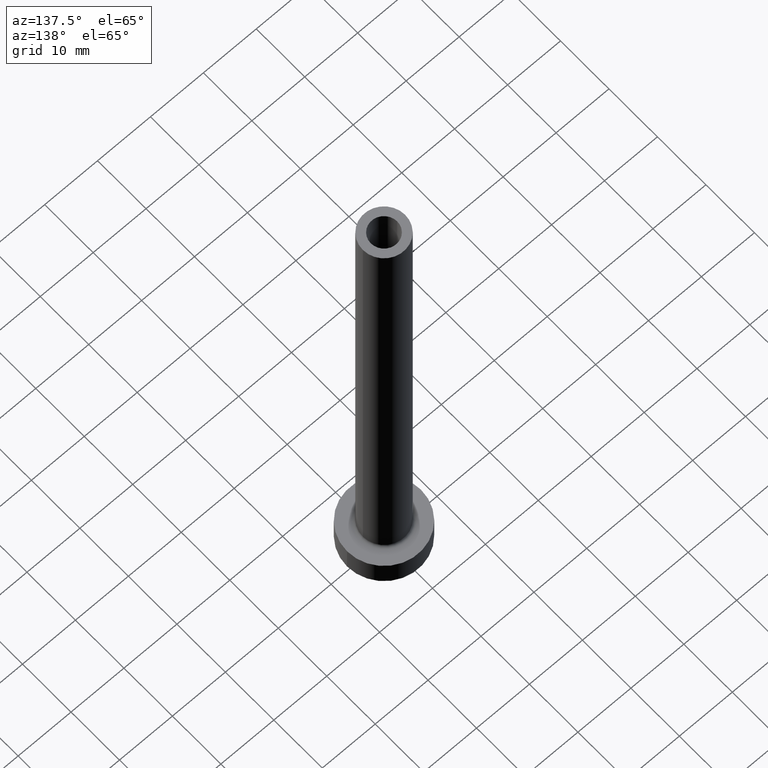
[diagram: clean part render]
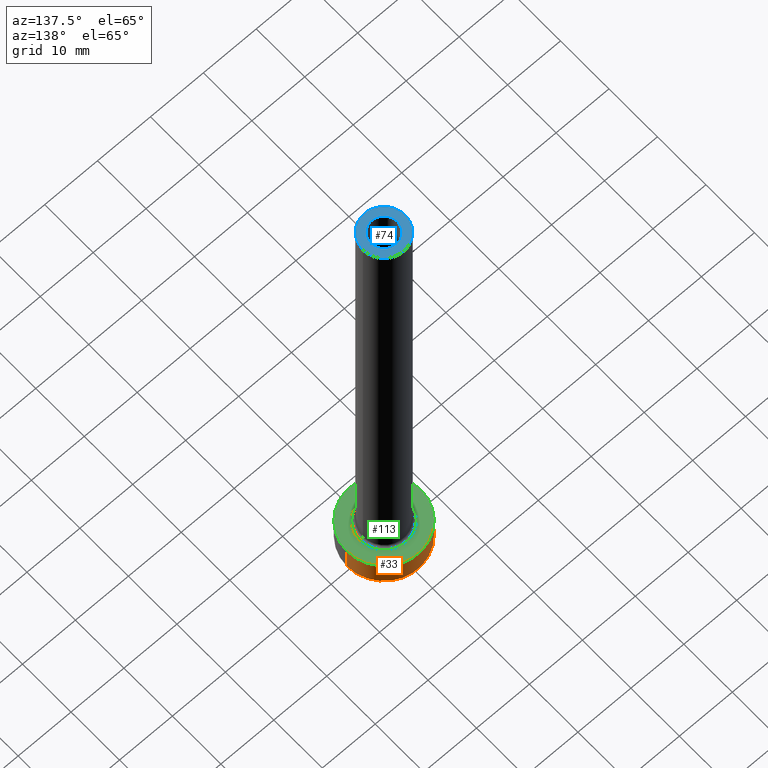
[diagram: same view with three faces highlighted in distinct colors, each labeled with its STEP entity id]
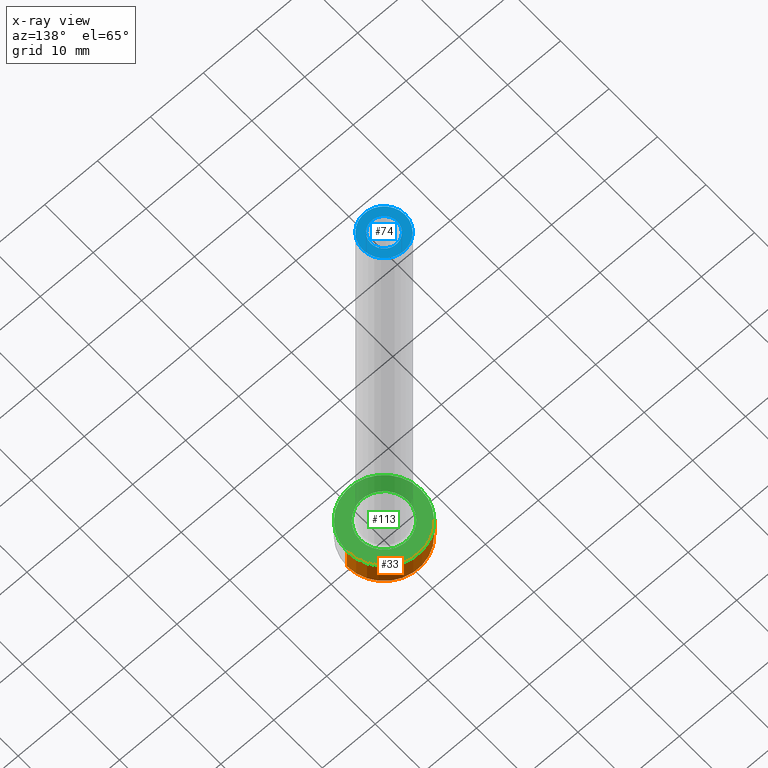
[diagram: x-ray of the same camera — body ghosted, the three highlighted faces saturated]
A machine part, auxiliary view with three faces highlighted in distinct colors.
The next image is the same camera in x-ray (body ghosted, the three faces saturated) — at least one of them is partly hidden behind the body in this view.
Their STEP definitions:

[orange] entity #33 — the highlighted cylindrical surface (partial cylindrical patch) has radius 7 mm, axis along (-0, -0, -1).
#3 = EDGE_CURVE ( 'NONE', #165, #420, #121, .T. ) ;
#12 = DIRECTION ( 'NONE',  ( 1.000000000000000000, 0.000000000000000000, 0.000000000000000000 ) ) ;
#22 = EDGE_CURVE ( 'NONE', #70, #372, #404, .T. ) ;
#30 = VECTOR ( 'NONE', #63, 1000.000000000000000 ) ;
#33 = ADVANCED_FACE ( 'NONE', ( #103 ), #214, .T. ) ;
#51 = EDGE_CURVE ( 'NONE', #165, #70, #215, .T. ) ;
#54 = DIRECTION ( 'NONE',  ( 1.000000000000000000, 0.000000000000000000, 0.000000000000000000 ) ) ;
#57 = CARTESIAN_POINT ( 'NONE',  ( 0.000000000000000000, 0.000000000000000000, 0.000000000000000000 ) ) ;
#63 = DIRECTION ( 'NONE',  ( -0.000000000000000000, -0.000000000000000000, -1.000000000000000000 ) ) ;
#70 = VERTEX_POINT ( 'NONE', #258 ) ;
#85 = DIRECTION ( 'NONE',  ( -0.000000000000000000, -0.000000000000000000, -1.000000000000000000 ) ) ;
#95 = DIRECTION ( 'NONE',  ( 0.000000000000000000, 0.000000000000000000, 1.000000000000000000 ) ) ;
#100 = DIRECTION ( 'NONE',  ( 0.000000000000000000, 0.000000000000000000, 1.000000000000000000 ) ) ;
#103 = FACE_OUTER_BOUND ( 'NONE', #216, .T. ) ;
#114 = AXIS2_PLACEMENT_3D ( 'NONE', #141, #287, #386 ) ;
#121 = CIRCLE ( 'NONE', #133, 7.000000000000000000 ) ;
#128 = LINE ( 'NONE', #361, #363 ) ;
#133 = AXIS2_PLACEMENT_3D ( 'NONE', #447, #95, #54 ) ;
#141 = CARTESIAN_POINT ( 'NONE',  ( 0.000000000000000000, 0.000000000000000000, 5.000000000000000000 ) ) ;
#160 = EDGE_CURVE ( 'NONE', #420, #372, #128, .T. ) ;
#162 = CARTESIAN_POINT ( 'NONE',  ( -7.000000000000000000, 0.000000000000000000, 0.000000000000000000 ) ) ;
#165 = VERTEX_POINT ( 'NONE', #190 ) ;
#190 = CARTESIAN_POINT ( 'NONE',  ( 7.000000000000000000, 8.572527594031473190E-16, 5.000000000000000000 ) ) ;
#214 = CYLINDRICAL_SURFACE ( 'NONE', #114, 7.000000000000000000 ) ;
#215 = LINE ( 'NONE', #378, #30 ) ;
#216 = EDGE_LOOP ( 'NONE', ( #439, #348, #306, #279 ) ) ;
#258 = CARTESIAN_POINT ( 'NONE',  ( 7.000000000000000000, 8.572527594031473190E-16, 0.000000000000000000 ) ) ;
#279 = ORIENTED_EDGE ( 'NONE', *, *, #160, .F. ) ;
#287 = DIRECTION ( 'NONE',  ( -0.000000000000000000, -0.000000000000000000, -1.000000000000000000 ) ) ;
#292 = CARTESIAN_POINT ( 'NONE',  ( -7.000000000000000000, 0.000000000000000000, 5.000000000000000000 ) ) ;
#306 = ORIENTED_EDGE ( 'NONE', *, *, #22, .T. ) ;
#348 = ORIENTED_EDGE ( 'NONE', *, *, #51, .T. ) ;
#361 = CARTESIAN_POINT ( 'NONE',  ( -7.000000000000000000, 0.000000000000000000, 5.000000000000000000 ) ) ;
#363 = VECTOR ( 'NONE', #85, 1000.000000000000000 ) ;
#372 = VERTEX_POINT ( 'NONE', #162 ) ;
#378 = CARTESIAN_POINT ( 'NONE',  ( 7.000000000000000000, 8.572527594031473190E-16, 5.000000000000000000 ) ) ;
#386 = DIRECTION ( 'NONE',  ( -1.000000000000000000, 0.000000000000000000, 0.000000000000000000 ) ) ;
#404 = CIRCLE ( 'NONE', #456, 7.000000000000000000 ) ;
#420 = VERTEX_POINT ( 'NONE', #292 ) ;
#439 = ORIENTED_EDGE ( 'NONE', *, *, #3, .F. ) ;
#447 = CARTESIAN_POINT ( 'NONE',  ( 0.000000000000000000, 0.000000000000000000, 5.000000000000000000 ) ) ;
#456 = AXIS2_PLACEMENT_3D ( 'NONE', #57, #100, #12 ) ;

[blue] entity #74 — the highlighted planar face has unit normal (0, 0, 1).
#2 = AXIS2_PLACEMENT_3D ( 'NONE', #19, #208, #343 ) ;
#6 = ORIENTED_EDGE ( 'NONE', *, *, #106, .T. ) ;
#10 = VERTEX_POINT ( 'NONE', #406 ) ;
#16 = AXIS2_PLACEMENT_3D ( 'NONE', #419, #109, #72 ) ;
#19 = CARTESIAN_POINT ( 'NONE',  ( 0.000000000000000000, 0.000000000000000000, 100.0000000000000000 ) ) ;
#26 = CARTESIAN_POINT ( 'NONE',  ( 0.000000000000000000, 0.000000000000000000, 100.0000000000000000 ) ) ;
#36 = DIRECTION ( 'NONE',  ( 1.000000000000000000, 0.000000000000000000, 0.000000000000000000 ) ) ;
#41 = EDGE_CURVE ( 'NONE', #228, #180, #123, .T. ) ;
#66 = FACE_BOUND ( 'NONE', #350, .T. ) ;
#72 = DIRECTION ( 'NONE',  ( 1.000000000000000000, 0.000000000000000000, 0.000000000000000000 ) ) ;
#74 = ADVANCED_FACE ( 'NONE', ( #66, #413 ), #148, .T. ) ;
#91 = CIRCLE ( 'NONE', #2, 2.500000000000000000 ) ;
#101 = DIRECTION ( 'NONE',  ( 1.000000000000000000, 0.000000000000000000, -0.000000000000000000 ) ) ;
#106 = EDGE_CURVE ( 'NONE', #180, #228, #261, .T. ) ;
#109 = DIRECTION ( 'NONE',  ( 0.000000000000000000, 0.000000000000000000, 1.000000000000000000 ) ) ;
#115 = EDGE_CURVE ( 'NONE', #390, #10, #218, .T. ) ;
#123 = CIRCLE ( 'NONE', #16, 4.000000000000000000 ) ;
#139 = AXIS2_PLACEMENT_3D ( 'NONE', #158, #357, #36 ) ;
#144 = DIRECTION ( 'NONE',  ( 0.000000000000000000, 0.000000000000000000, 1.000000000000000000 ) ) ;
#148 = PLANE ( 'NONE',  #183 ) ;
#154 = ORIENTED_EDGE ( 'NONE', *, *, #41, .T. ) ;
#156 = DIRECTION ( 'NONE',  ( 0.000000000000000000, 0.000000000000000000, 1.000000000000000000 ) ) ;
#158 = CARTESIAN_POINT ( 'NONE',  ( 0.000000000000000000, 0.000000000000000000, 100.0000000000000000 ) ) ;
#180 = VERTEX_POINT ( 'NONE', #329 ) ;
#182 = ORIENTED_EDGE ( 'NONE', *, *, #264, .F. ) ;
#183 = AXIS2_PLACEMENT_3D ( 'NONE', #26, #144, #101 ) ;
#208 = DIRECTION ( 'NONE',  ( 0.000000000000000000, 0.000000000000000000, 1.000000000000000000 ) ) ;
#218 = CIRCLE ( 'NONE', #139, 2.500000000000000000 ) ;
#223 = DIRECTION ( 'NONE',  ( 1.000000000000000000, 0.000000000000000000, 0.000000000000000000 ) ) ;
#228 = VERTEX_POINT ( 'NONE', #441 ) ;
#229 = CARTESIAN_POINT ( 'NONE',  ( 0.000000000000000000, 0.000000000000000000, 100.0000000000000000 ) ) ;
#261 = CIRCLE ( 'NONE', #266, 4.000000000000000000 ) ;
#264 = EDGE_CURVE ( 'NONE', #10, #390, #91, .T. ) ;
#266 = AXIS2_PLACEMENT_3D ( 'NONE', #229, #156, #223 ) ;
#270 = CARTESIAN_POINT ( 'NONE',  ( -2.500000000000000000, 0.000000000000000000, 100.0000000000000000 ) ) ;
#329 = CARTESIAN_POINT ( 'NONE',  ( -4.000000000000000000, 0.000000000000000000, 100.0000000000000000 ) ) ;
#343 = DIRECTION ( 'NONE',  ( 1.000000000000000000, 0.000000000000000000, 0.000000000000000000 ) ) ;
#350 = EDGE_LOOP ( 'NONE', ( #382, #182 ) ) ;
#351 = EDGE_LOOP ( 'NONE', ( #6, #154 ) ) ;
#357 = DIRECTION ( 'NONE',  ( 0.000000000000000000, 0.000000000000000000, 1.000000000000000000 ) ) ;
#382 = ORIENTED_EDGE ( 'NONE', *, *, #115, .F. ) ;
#390 = VERTEX_POINT ( 'NONE', #270 ) ;
#406 = CARTESIAN_POINT ( 'NONE',  ( 2.500000000000000000, 3.061616997868382648E-16, 100.0000000000000000 ) ) ;
#413 = FACE_OUTER_BOUND ( 'NONE', #351, .T. ) ;
#419 = CARTESIAN_POINT ( 'NONE',  ( 0.000000000000000000, 0.000000000000000000, 100.0000000000000000 ) ) ;
#441 = CARTESIAN_POINT ( 'NONE',  ( 4.000000000000000000, 4.898587196589412829E-16, 100.0000000000000000 ) ) ;

[green] entity #113 — the highlighted planar face has unit normal (0, 0, 1).
#1 = DIRECTION ( 'NONE',  ( 1.000000000000000000, 0.000000000000000000, 0.000000000000000000 ) ) ;
#3 = EDGE_CURVE ( 'NONE', #165, #420, #121, .T. ) ;
#15 = DIRECTION ( 'NONE',  ( 1.000000000000000000, 0.000000000000000000, 0.000000000000000000 ) ) ;
#17 = EDGE_CURVE ( 'NONE', #96, #338, #64, .T. ) ;
#21 = DIRECTION ( 'NONE',  ( 0.000000000000000000, 0.000000000000000000, 1.000000000000000000 ) ) ;
#45 = AXIS2_PLACEMENT_3D ( 'NONE', #355, #428, #325 ) ;
#53 = AXIS2_PLACEMENT_3D ( 'NONE', #226, #120, #1 ) ;
#54 = DIRECTION ( 'NONE',  ( 1.000000000000000000, 0.000000000000000000, 0.000000000000000000 ) ) ;
#64 = CIRCLE ( 'NONE', #412, 4.500000000000000888 ) ;
#83 = FACE_OUTER_BOUND ( 'NONE', #321, .T. ) ;
#92 = DIRECTION ( 'NONE',  ( 1.000000000000000000, 0.000000000000000000, 0.000000000000000000 ) ) ;
#95 = DIRECTION ( 'NONE',  ( 0.000000000000000000, 0.000000000000000000, 1.000000000000000000 ) ) ;
#96 = VERTEX_POINT ( 'NONE', #418 ) ;
#102 = ORIENTED_EDGE ( 'NONE', *, *, #393, .T. ) ;
#113 = ADVANCED_FACE ( 'NONE', ( #295, #83 ), #262, .T. ) ;
#120 = DIRECTION ( 'NONE',  ( -0.000000000000000000, -0.000000000000000000, -1.000000000000000000 ) ) ;
#121 = CIRCLE ( 'NONE', #133, 7.000000000000000000 ) ;
#133 = AXIS2_PLACEMENT_3D ( 'NONE', #447, #95, #54 ) ;
#146 = ORIENTED_EDGE ( 'NONE', *, *, #303, .T. ) ;
#151 = ORIENTED_EDGE ( 'NONE', *, *, #17, .T. ) ;
#165 = VERTEX_POINT ( 'NONE', #190 ) ;
#171 = CARTESIAN_POINT ( 'NONE',  ( -4.500000000000000888, 5.510910596163088569E-16, 5.000000000000002665 ) ) ;
#173 = EDGE_LOOP ( 'NONE', ( #151, #102 ) ) ;
#190 = CARTESIAN_POINT ( 'NONE',  ( 7.000000000000000000, 8.572527594031473190E-16, 5.000000000000000000 ) ) ;
#225 = CIRCLE ( 'NONE', #53, 4.500000000000000888 ) ;
#226 = CARTESIAN_POINT ( 'NONE',  ( 0.000000000000000000, 0.000000000000000000, 5.000000000000000000 ) ) ;
#240 = CARTESIAN_POINT ( 'NONE',  ( 0.000000000000000000, 0.000000000000000000, 5.000000000000000000 ) ) ;
#247 = DIRECTION ( 'NONE',  ( -0.000000000000000000, -0.000000000000000000, -1.000000000000000000 ) ) ;
#262 = PLANE ( 'NONE',  #45 ) ;
#286 = CIRCLE ( 'NONE', #304, 7.000000000000000000 ) ;
#292 = CARTESIAN_POINT ( 'NONE',  ( -7.000000000000000000, 0.000000000000000000, 5.000000000000000000 ) ) ;
#294 = ORIENTED_EDGE ( 'NONE', *, *, #3, .T. ) ;
#295 = FACE_BOUND ( 'NONE', #173, .T. ) ;
#303 = EDGE_CURVE ( 'NONE', #420, #165, #286, .T. ) ;
#304 = AXIS2_PLACEMENT_3D ( 'NONE', #334, #21, #15 ) ;
#321 = EDGE_LOOP ( 'NONE', ( #146, #294 ) ) ;
#325 = DIRECTION ( 'NONE',  ( 1.000000000000000000, 0.000000000000000000, -0.000000000000000000 ) ) ;
#334 = CARTESIAN_POINT ( 'NONE',  ( 0.000000000000000000, 0.000000000000000000, 5.000000000000000000 ) ) ;
#338 = VERTEX_POINT ( 'NONE', #171 ) ;
#355 = CARTESIAN_POINT ( 'NONE',  ( 0.000000000000000000, 0.000000000000000000, 5.000000000000000000 ) ) ;
#393 = EDGE_CURVE ( 'NONE', #338, #96, #225, .T. ) ;
#412 = AXIS2_PLACEMENT_3D ( 'NONE', #240, #247, #92 ) ;
#418 = CARTESIAN_POINT ( 'NONE',  ( 4.500000000000000888, 0.000000000000000000, 5.000000000000002665 ) ) ;
#420 = VERTEX_POINT ( 'NONE', #292 ) ;
#428 = DIRECTION ( 'NONE',  ( 0.000000000000000000, 0.000000000000000000, 1.000000000000000000 ) ) ;
#447 = CARTESIAN_POINT ( 'NONE',  ( 0.000000000000000000, 0.000000000000000000, 5.000000000000000000 ) ) ;